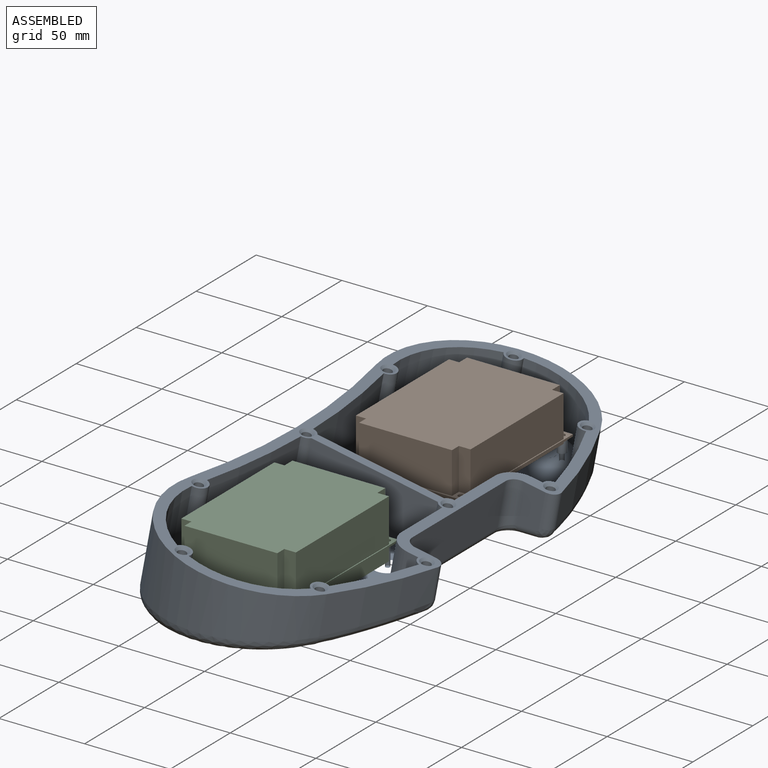
[diagram: assembled view]
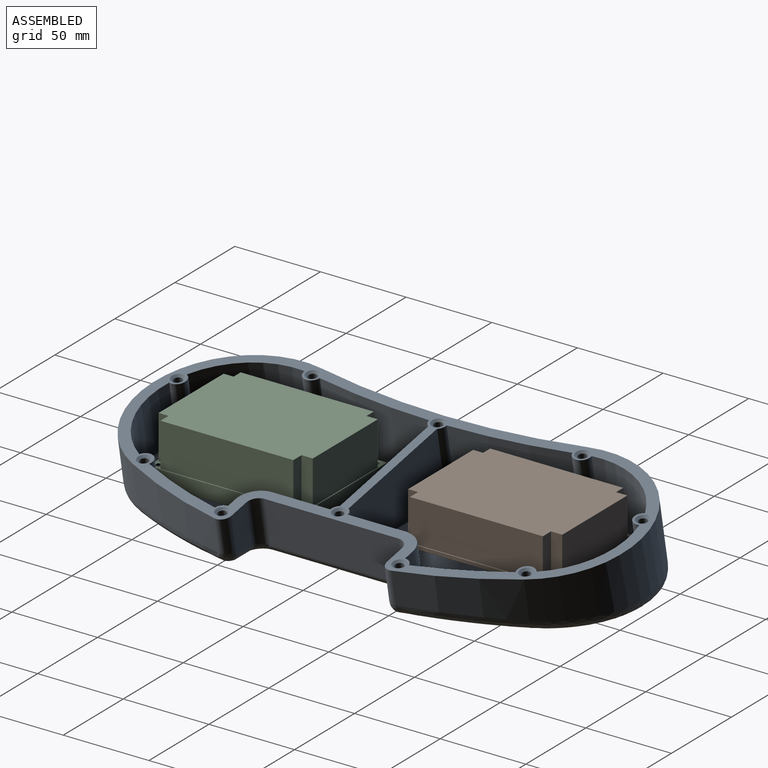
[diagram: assembled view, second angle]
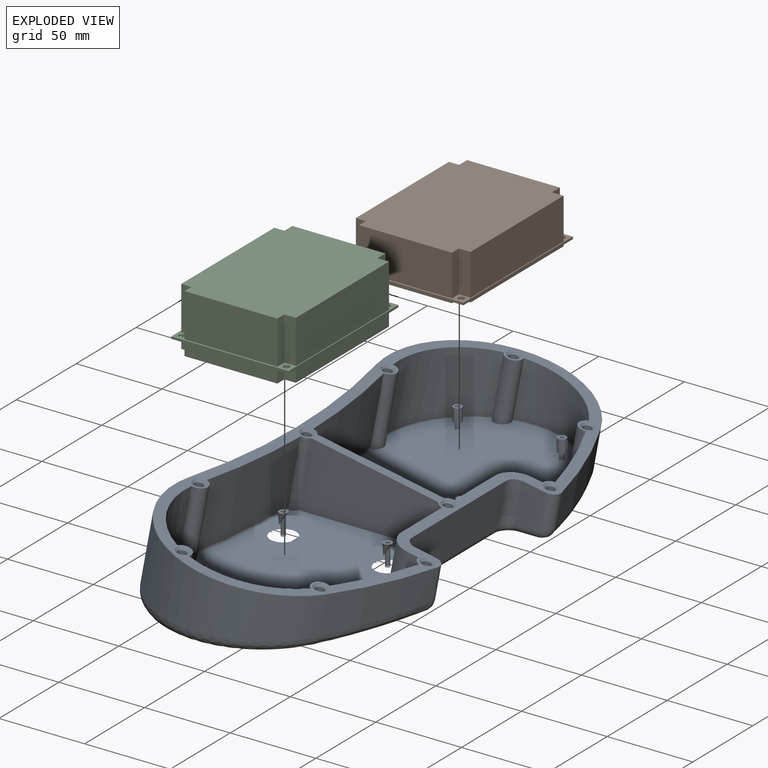
[diagram: exploded view]
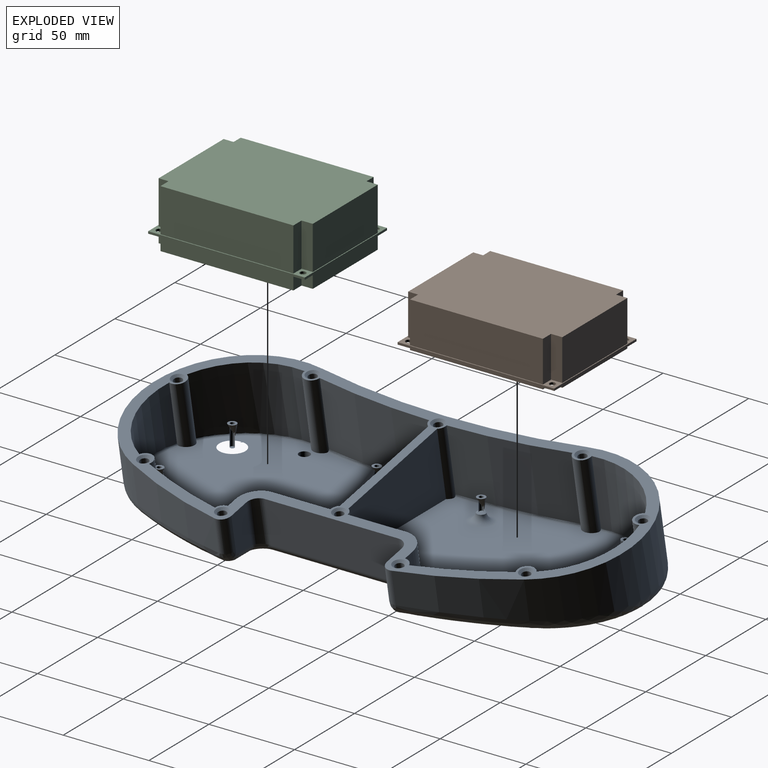
[diagram: exploded view, second angle]
ASSEMBLY  parts=3 mates=4
PART A: 146 faces, bbox 132.6x293.5x52.1 mm
  f0: plane 137.2x114.76mm, normal (-0.18,0,0.98), area 11283.3mm2, adj f2,f15,f28,f30,f44,f77,f100,f101
  f1: cylinder r=50.8mm len=57.05mm, axis (0,0,1), area 1942.7mm2, adj f11,f28,f101,f111
  f2: bspline ~56.74x34.08mm, area 132mm2, adj f0,f24,f105,f111
  f3: plane 137.2x114.76mm, normal (-0.18,0,0.98), area 11283.2mm2, adj f5,f6,f27,f29,f43,f78,f102,f103
  f4: cylinder r=50.8mm len=51.29mm, axis (0,0,1), area 2451.4mm2, adj f11,f29,f104,f110
  f5: bspline ~60.43x27.92mm, area 121.2mm2, adj f3,f25,f103,f110
  f6: bspline ~69.43x8.5mm, area 154.8mm2, adj f3,f26,f104,f109
  f7: plane 33.93x24.63mm, normal (-1,0,0), area 835.7mm2, adj f11,f41,f107,f122
  f8: cylinder r=393.7mm len=68.68mm, axis (0,0,1), area 2805.1mm2, adj f11,f30,f105,f108
  f9: cylinder r=250.83mm len=50.23mm, axis (0,0,1), area 1167.9mm2, adj f11,f15,f100,f101
  f10: cylinder r=257.18mm len=62.7mm, axis (0,0,1), area 1462.8mm2, adj f11,f16,f20,f79
  f11: plane 292.1x130.02mm, normal (0,0,1), area 4977.9mm2, adj f1,f4,f7,f8,f9,f10,f14,f16
  f12: plane 277.23x114.31mm, normal (0.18,0,-0.98), area 24885.5mm2, adj f13,f20,f21,f22,f23,f77,f78,f82
  f13: bspline ~90.1x38.56mm, area 686.6mm2, adj f12,f17,f22,f87,f89,f112,f119
  f14: cylinder r=250.83mm len=50.23mm, axis (0,0,1), area 1167.9mm2, adj f11,f27,f102,f103
  f15: bspline ~50.75x18.45mm, area 94.6mm2, adj f0,f9,f100,f101
  f16: cylinder r=57.15mm len=108.35mm, axis (0,0,1), area 5386mm2, adj f10,f11,f19,f21
  f17: cylinder r=257.18mm len=62.7mm, axis (0,0,1), area 1462.8mm2, adj f11,f13,f18,f85
  f18: cylinder r=57.15mm len=108.35mm, axis (0,0,1), area 5386mm2, adj f11,f17,f19,f22
  f19: cylinder r=387.35mm len=154.94mm, axis (0,0,1), area 6462.2mm2, adj f11,f16,f18,f23
  f20: bspline ~90.1x38.56mm, area 686.6mm2, adj f10,f12,f21,f80,f81,f114,f120
  f21: bspline ~111.04x74.9mm, area 1905.8mm2, adj f12,f16,f20,f23,f115,f120,f121
  f22: bspline ~111.04x74.9mm, area 1906.1mm2, adj f12,f13,f18,f23,f117,f118,f119
  f23: bspline ~157.99x16.85mm, area 2061mm2, adj f12,f19,f21,f22,f115,f116,f117
  f24: cylinder r=50.8mm len=50.2mm, axis (0,0,1), area 2367.4mm2, adj f2,f11,f105,f111
  f25: cylinder r=50.8mm len=54.65mm, axis (0,0,1), area 1855.4mm2, adj f5,f11,f103,f110
  f26: cylinder r=393.7mm len=68.68mm, axis (0,0,1), area 2805.1mm2, adj f6,f11,f104,f109
  f27: bspline ~50.75x18.45mm, area 94.6mm2, adj f3,f14,f102,f103
  f28: bspline ~66.63x27.92mm, area 126.3mm2, adj f0,f1,f101,f111
  f29: bspline ~56.74x34.08mm, area 137.2mm2, adj f3,f4,f104,f110
  f30: bspline ~69.43x8.5mm, area 154.8mm2, adj f0,f8,f105,f108
  f31: cylinder r=6.35mm len=26.74mm, axis (0,0,1), area 256mm2, adj f11,f32,f34,f86
  f32: plane 78.02x26.74mm, normal (1,0,0), area 2086mm2, adj f11,f31,f33,f84
  f33: cylinder r=6.35mm len=26.74mm, axis (0,0,1), area 256mm2, adj f11,f32,f35,f83
  f34: plane 24.59x12.7mm, normal (0,-1,0), area 296.6mm2, adj f11,f31,f36,f88,f89
  f35: plane 24.59x12.7mm, normal (0,1,0), area 296.6mm2, adj f11,f33,f37,f81,f82
  f36: plane 22.27x1.42mm, normal (0.18,-0.98,0), area 26.2mm2, adj f11,f34,f85,f87,f89
  f37: plane 22.27x1.42mm, normal (0.18,0.98,0), area 26.2mm2, adj f11,f35,f79,f80,f81
  f38: plane 22x6.37mm, normal (0,-1,0), area 136.3mm2, adj f11,f39,f100,f127
  f39: cylinder r=12.7mm len=24.63mm, axis (0,0,1), area 465.2mm2, adj f11,f38,f40,f126
  f40: plane 33.93x24.63mm, normal (-1,0,0), area 835.7mm2, adj f11,f39,f106,f125
  f41: cylinder r=12.7mm len=24.63mm, axis (0,0,1), area 465.2mm2, adj f7,f11,f42,f123
  f42: plane 22x6.37mm, normal (0,1,0), area 136.3mm2, adj f11,f41,f102,f124
  f43: plane 75.13x40.63mm, normal (0,1,0), area 2522.4mm2, adj f3,f11,f107,f109
  f44: plane 75.13x40.63mm, normal (0,-1,0), area 2522.4mm2, adj f0,f11,f106,f108
  f45: cylinder r=1.27mm len=12.95mm, axis (0.18,0,-0.98), area 101.3mm2, adj f47,f48
  f46: cylinder r=2.54mm len=8.43mm, axis (0.18,0,-0.98), area 121.6mm2, adj f47,f131
  f47: plane 5.08x4.99mm, normal (-0.18,0,0.98), area 15.2mm2, adj f45,f46
  f48: plane 2.54x2.5mm, normal (-0.18,0,0.98), area 5.1mm2, adj f45
  f49: cylinder r=1.27mm len=12.95mm, axis (0.18,0,-0.98), area 101.3mm2, adj f51,f52
  f50: cylinder r=2.54mm len=8.43mm, axis (0.18,0,-0.98), area 121.6mm2, adj f51,f130
  f51: plane 5.08x4.99mm, normal (-0.18,0,0.98), area 15.2mm2, adj f49,f50
  f52: plane 2.54x2.5mm, normal (-0.18,0,0.98), area 5.1mm2, adj f49
  f53: cylinder r=1.27mm len=12.95mm, axis (0.18,0,-0.98), area 101.3mm2, adj f55,f56
  f54: cylinder r=2.54mm len=8.43mm, axis (0.18,0,-0.98), area 121.6mm2, adj f55,f129
  f55: plane 5.08x4.99mm, normal (-0.18,0,0.98), area 15.2mm2, adj f53,f54
  f56: plane 2.54x2.5mm, normal (-0.18,0,0.98), area 5.1mm2, adj f53
  f57: cylinder r=1.27mm len=12.95mm, axis (0.18,0,-0.98), area 101.3mm2, adj f59,f60
  f58: cylinder r=2.54mm len=8.43mm, axis (0.18,0,-0.98), area 121.6mm2, adj f59,f128
  f59: plane 5.08x4.99mm, normal (-0.18,0,0.98), area 15.2mm2, adj f57,f58
  f60: plane 2.54x2.5mm, normal (-0.18,0,0.98), area 5.1mm2, adj f57
  f61: cylinder r=2.54mm len=8.43mm, axis (0.18,0,-0.98), area 121.6mm2, adj f63,f135
  f62: cylinder r=1.27mm len=12.95mm, axis (0.18,0,-0.98), area 101.3mm2, adj f63,f64
  f63: plane 5.08x4.99mm, normal (-0.18,0,0.98), area 15.2mm2, adj f61,f62
  f64: plane 2.54x2.5mm, normal (-0.18,0,0.98), area 5.1mm2, adj f62
  f65: cylinder r=2.54mm len=8.43mm, axis (0.18,0,-0.98), area 121.6mm2, adj f67,f134
  f66: cylinder r=1.27mm len=12.95mm, axis (0.18,0,-0.98), area 101.3mm2, adj f67,f68
  f67: plane 5.08x4.99mm, normal (-0.18,0,0.98), area 15.2mm2, adj f65,f66
  f68: plane 2.54x2.5mm, normal (-0.18,0,0.98), area 5.1mm2, adj f66
  f69: cylinder r=2.54mm len=8.43mm, axis (0.18,0,-0.98), area 121.6mm2, adj f71,f133
  f70: cylinder r=1.27mm len=12.95mm, axis (0.18,0,-0.98), area 101.3mm2, adj f71,f72
  f71: plane 5.08x4.99mm, normal (-0.18,0,0.98), area 15.2mm2, adj f69,f70
  f72: plane 2.54x2.5mm, normal (-0.18,0,0.98), area 5.1mm2, adj f70
  f73: cylinder r=2.54mm len=8.43mm, axis (0.18,0,-0.98), area 121.6mm2, adj f75,f132
  f74: cylinder r=1.27mm len=12.95mm, axis (0.18,0,-0.98), area 101.3mm2, adj f75,f76
  f75: plane 5.08x4.99mm, normal (-0.18,0,0.98), area 15.2mm2, adj f73,f74
  f76: plane 2.54x2.5mm, normal (-0.18,0,0.98), area 5.1mm2, adj f74
  f77: cylinder r=3.17mm len=7.41mm, axis (-0.18,0,0.98), area 126.7mm2, adj f0,f12
  f78: cylinder r=3.17mm len=7.41mm, axis (-0.18,0,0.98), area 126.7mm2, adj f3,f12
  f79: cylinder r=5.08mm len=20.03mm, axis (0,0,1), area 161.9mm2, adj f10,f11,f37,f80
  f80: bspline ~7.55x6.28mm, area 39mm2, adj f20,f37,f79,f81
  f81: bspline ~7.99x6.75mm, area 30.3mm2, adj f20,f35,f37,f80,f82,f114
  f82: cylinder r=5.08mm len=11.82mm, axis (0.98,0,0.18), area 85.9mm2, adj f12,f35,f81,f83,f114
  f83: bspline ~11.43x11.43mm, area 98mm2, adj f12,f33,f82,f84
  f84: cylinder r=5.08mm len=78.02mm, axis (0,-1,0), area 548.5mm2, adj f12,f32,f83,f86,f113
  f85: cylinder r=5.08mm len=20.03mm, axis (0,0,1), area 161.9mm2, adj f11,f17,f36,f87
  f86: bspline ~11.43x11.43mm, area 98mm2, adj f12,f31,f84,f88
  f87: bspline ~7.55x6.28mm, area 39mm2, adj f13,f36,f85,f89
  f88: cylinder r=5.08mm len=11.82mm, axis (-0.98,0,-0.18), area 85.9mm2, adj f12,f34,f86,f89,f112
  f89: bspline ~7.99x6.75mm, area 30.3mm2, adj f13,f34,f36,f87,f88,f112
  f90: plane 0.8x0.75mm, normal (-0.98,0,-0.18), area 0.6mm2, adj f12,f91,f93,f94
  f91: plane 3.23x1.33mm, normal (0,1,0), area 2.4mm2, adj f12,f90,f92,f94
  f92: plane 0.8x0.75mm, normal (0.98,0,0.18), area 0.6mm2, adj f12,f91,f93,f94
  f93: cylinder r=1.57mm len=3.23mm, axis (0.18,0,-0.98), area 3.8mm2, adj f12,f90,f92,f94
  f94: plane 3.09x2.37mm, normal (0.18,0,-0.98), area 6.4mm2, adj f90,f91,f92,f93
  f95: plane 0.79x0.38mm, normal (0.66,-0.74,0.12), area 0.3mm2, adj f12,f96,f98,f99
  f96: cylinder r=1.57mm len=3.23mm, axis (0.18,0,-0.98), area 5.5mm2, adj f12,f95,f97,f99
  f97: plane 0.79x0.38mm, normal (-0.65,-0.75,-0.12), area 0.3mm2, adj f12,f96,f98,f99
  f98: cylinder r=1.24mm len=2.58mm, axis (0.18,0,-0.98), area 4.4mm2, adj f12,f95,f97,f99
  f99: plane 3.09x2.63mm, normal (0.18,0,-0.98), area 2.1mm2, adj f95,f96,f97,f98
  f100: cylinder r=5.08mm len=22.07mm, axis (0,0,1), area 148.5mm2, adj f0,f9,f11,f15,f38,f127
  f101: cylinder r=5.08mm len=25.68mm, axis (0,0,1), area 393.9mm2, adj f0,f1,f9,f11,f15,f28
  f102: cylinder r=5.08mm len=22.07mm, axis (0,0,1), area 148.5mm2, adj f3,f11,f14,f27,f42,f124
  f103: cylinder r=5.08mm len=25.68mm, axis (0,0,1), area 393.9mm2, adj f3,f5,f11,f14,f25,f27
  f104: cylinder r=5.08mm len=42.81mm, axis (0,0,1), area 669.4mm2, adj f3,f4,f6,f11,f26,f29
  f105: cylinder r=5.08mm len=42.81mm, axis (0,0,1), area 669.4mm2, adj f0,f2,f8,f11,f24,f30
  f106: cylinder r=5.08mm len=26.51mm, axis (0,0,1), area 138.4mm2, adj f0,f11,f40,f44,f125
  f107: cylinder r=5.08mm len=26.51mm, axis (0,0,1), area 138.4mm2, adj f3,f7,f11,f43,f122
  f108: cylinder r=5.08mm len=41.18mm, axis (0,0,1), area 218.1mm2, adj f0,f8,f11,f30,f44
  f109: cylinder r=5.08mm len=41.18mm, axis (0,0,1), area 218.1mm2, adj f3,f6,f11,f26,f43
  f110: cylinder r=5.08mm len=37.46mm, axis (0,0,1), area 563.8mm2, adj f3,f4,f5,f11,f25,f29
  f111: cylinder r=5.08mm len=37.86mm, axis (0,0,1), area 570.3mm2, adj f0,f1,f2,f11,f24,f28
  f112: cylinder r=2.54mm len=26.75mm, axis (0,0,1), area 417.9mm2, adj f12,f13,f88,f89,f138
  f113: cylinder r=2.54mm len=31.36mm, axis (0,0,1), area 492.8mm2, adj f12,f84,f142
  f114: cylinder r=2.54mm len=26.75mm, axis (0,0,1), area 417.9mm2, adj f12,f20,f81,f82,f137
  f115: cylinder r=2.54mm len=47.85mm, axis (0,0,1), area 757.1mm2, adj f21,f23,f145
  f116: cylinder r=2.54mm len=46.17mm, axis (0,0,1), area 736.9mm2, adj f23,f143
  f117: cylinder r=2.54mm len=47.85mm, axis (0,0,1), area 757.1mm2, adj f22,f23,f140
  f118: cylinder r=2.54mm len=42.2mm, axis (0,0,1), area 661.7mm2, adj f12,f22,f141
  f119: cylinder r=2.54mm len=30.71mm, axis (0,0,1), area 481mm2, adj f12,f13,f22,f139
  f120: cylinder r=2.54mm len=30.71mm, axis (0,0,1), area 481mm2, adj f12,f20,f21,f136
  f121: cylinder r=2.54mm len=42.61mm, axis (0,0,1), area 668.4mm2, adj f12,f21,f144
  f122: cylinder r=1.27mm len=34.04mm, axis (0,-1,0), area 59.8mm2, adj f3,f7,f107,f123
  f123: bspline ~13.97x13.97mm, area 38.6mm2, adj f3,f41,f122,f124
  f124: cylinder r=1.27mm len=6.6mm, axis (-0.98,0,-0.18), area 12.9mm2, adj f3,f42,f102,f123
  f125: cylinder r=1.27mm len=34.04mm, axis (0,-1,0), area 59.8mm2, adj f0,f40,f106,f126
  f126: bspline ~13.97x13.97mm, area 38.6mm2, adj f0,f39,f125,f127
  f127: cylinder r=1.27mm len=6.6mm, axis (0.98,0,0.18), area 12.9mm2, adj f0,f38,f100,f126
  f128: torus R=7.62mm, axis (0.18,0,-0.98), area 219.9mm2, adj f3,f58
  f129: torus R=7.62mm, axis (0.18,0,-0.98), area 219.9mm2, adj f3,f54
  f130: torus R=7.62mm, axis (0.18,0,-0.98), area 219.9mm2, adj f3,f50
  f131: torus R=7.62mm, axis (0.18,0,-0.98), area 219.9mm2, adj f3,f46
  f132: torus R=7.62mm, axis (0.18,0,-0.98), area 219.9mm2, adj f0,f73
  f133: torus R=7.62mm, axis (0.18,0,-0.98), area 219.9mm2, adj f0,f69
  f134: torus R=7.62mm, axis (0.18,0,-0.98), area 219.9mm2, adj f0,f65
  f135: torus R=7.62mm, axis (0.18,0,-0.98), area 219.9mm2, adj f0,f61
  f136: cone r=2.54mm half-angle=45deg, axis (0,0,1), area 35.8mm2, adj f11,f120
  f137: cone r=2.54mm half-angle=45deg, axis (0,0,1), area 35.8mm2, adj f11,f114
  f138: cone r=2.54mm half-angle=45deg, axis (0,0,1), area 35.8mm2, adj f11,f112
  f139: cone r=2.54mm half-angle=45deg, axis (0,0,1), area 35.8mm2, adj f11,f119
  f140: cone r=2.54mm half-angle=45deg, axis (0,0,1), area 35.8mm2, adj f11,f117
  f141: cone r=2.54mm half-angle=45deg, axis (0,0,1), area 35.8mm2, adj f11,f118
  f142: cone r=2.54mm half-angle=45deg, axis (0,0,1), area 35.8mm2, adj f11,f113
  f143: cone r=2.54mm half-angle=45deg, axis (0,0,1), area 35.8mm2, adj f11,f116
  f144: cone r=2.54mm half-angle=45deg, axis (0,0,1), area 35.8mm2, adj f11,f121
  f145: cone r=2.54mm half-angle=45deg, axis (0,0,1), area 35.8mm2, adj f11,f115
PART B: 36 faces, bbox 91.4x68.6x26.7 mm
  f0: plane 91.44x68.58mm, normal (0,0,1), area 367.2mm2, adj f2,f3,f4,f5,f6,f7,f8,f9
  f1: plane 91.44x68.58mm, normal (0,0,-1), area 367.2mm2, adj f2,f3,f4,f5,f6,f7,f8,f9
  f2: plane 68.58x1.27mm, normal (-1,0,0), area 87.1mm2, adj f0,f1,f3,f5
  f3: plane 91.44x1.27mm, normal (0,-1,0), area 116.1mm2, adj f0,f1,f2,f4
  f4: plane 68.58x1.27mm, normal (1,0,0), area 87.1mm2, adj f0,f1,f3,f5
  f5: plane 91.44x1.27mm, normal (0,1,0), area 116.1mm2, adj f0,f1,f2,f4
  f6: cylinder r=1.78mm len=3.56mm, axis (0,0,-1), area 14.2mm2, adj f0,f1
  f7: cylinder r=1.78mm len=3.56mm, axis (0,0,-1), area 14.2mm2, adj f0,f1
  f8: cylinder r=1.78mm len=3.56mm, axis (0,0,-1), area 14.2mm2, adj f0,f1
  f9: cylinder r=1.78mm len=3.56mm, axis (0,0,-1), area 14.2mm2, adj f0,f1
  f10: plane 89.98x66.92mm, normal (0,0,-1), area 5864mm2, adj f11,f12,f13,f14,f15,f16,f17,f18
  f11: plane 6.57x1.27mm, normal (0,1,0), area 8.3mm2, adj f1,f10,f12,f22
  f12: plane 54.21x1.27mm, normal (-1,0,0), area 68.8mm2, adj f1,f10,f11,f13
  f13: plane 6.57x1.27mm, normal (0,-1,0), area 8.3mm2, adj f1,f10,f12,f14
  f14: plane 5.93x1.27mm, normal (-1,0,0), area 7.5mm2, adj f1,f10,f13,f15
  f15: plane 77.61x1.27mm, normal (0,-1,0), area 98.6mm2, adj f1,f10,f14,f16
  f16: plane 5.93x1.27mm, normal (1,0,0), area 7.5mm2, adj f1,f10,f15,f17
  f17: plane 5.8x1.27mm, normal (0,-1,0), area 7.4mm2, adj f1,f10,f16,f18
  f18: plane 54.21x1.27mm, normal (1,0,0), area 68.8mm2, adj f1,f10,f17,f19
  f19: plane 5.8x1.27mm, normal (0,1,0), area 7.4mm2, adj f1,f10,f18,f20
  f20: plane 6.78x1.27mm, normal (1,0,0), area 8.6mm2, adj f1,f10,f19,f21
  f21: plane 77.61x1.27mm, normal (0,1,0), area 98.6mm2, adj f1,f10,f20,f22
  f22: plane 6.78x1.27mm, normal (-1,0,0), area 8.6mm2, adj f1,f10,f11,f21
  f23: plane 24.13x6.78mm, normal (-1,0,0), area 163.6mm2, adj f0,f24,f34,f35
  f24: plane 77.61x24.13mm, normal (0,1,0), area 1872.6mm2, adj f0,f23,f25,f35
  f25: plane 24.13x6.78mm, normal (1,0,0), area 163.6mm2, adj f0,f24,f26,f35
  f26: plane 24.13x5.8mm, normal (0,1,0), area 139.9mm2, adj f0,f25,f27,f35
  f27: plane 54.21x24.13mm, normal (1,0,0), area 1308.1mm2, adj f0,f26,f28,f35
  f28: plane 24.13x5.8mm, normal (0,-1,0), area 139.9mm2, adj f0,f27,f29,f35
  f29: plane 24.13x5.93mm, normal (1,0,0), area 143.2mm2, adj f0,f28,f30,f35
  f30: plane 77.61x24.13mm, normal (0,-1,0), area 1872.6mm2, adj f0,f29,f31,f35
  f31: plane 24.13x5.93mm, normal (-1,0,0), area 143.2mm2, adj f0,f30,f32,f35
  f32: plane 24.13x6.57mm, normal (0,-1,0), area 158.6mm2, adj f0,f31,f33,f35
  f33: plane 54.21x24.13mm, normal (-1,0,0), area 1308.1mm2, adj f0,f32,f34,f35
  f34: plane 24.13x6.57mm, normal (0,1,0), area 158.6mm2, adj f0,f23,f33,f35
  f35: plane 89.98x66.92mm, normal (0,0,1), area 5864mm2, adj f23,f24,f25,f26,f27,f28,f29,f30
PART C: 36 faces, bbox 91.4x68.6x34.3 mm
  f0: plane 91.44x68.58mm, normal (0,0,1), area 367.2mm2, adj f2,f3,f4,f5,f6,f7,f8,f9
  f1: plane 91.44x68.58mm, normal (0,0,-1), area 367.2mm2, adj f2,f3,f4,f5,f6,f7,f8,f9
  f2: plane 68.58x1.27mm, normal (-1,0,0), area 87.1mm2, adj f0,f1,f3,f5
  f3: plane 91.44x1.27mm, normal (0,-1,0), area 116.1mm2, adj f0,f1,f2,f4
  f4: plane 68.58x1.27mm, normal (1,0,0), area 87.1mm2, adj f0,f1,f3,f5
  f5: plane 91.44x1.27mm, normal (0,1,0), area 116.1mm2, adj f0,f1,f2,f4
  f6: cylinder r=1.78mm len=3.56mm, axis (0,0,-1), area 14.2mm2, adj f0,f1
  f7: cylinder r=1.78mm len=3.56mm, axis (0,0,-1), area 14.2mm2, adj f0,f1
  f8: cylinder r=1.78mm len=3.56mm, axis (0,0,-1), area 14.2mm2, adj f0,f1
  f9: cylinder r=1.78mm len=3.56mm, axis (0,0,-1), area 14.2mm2, adj f0,f1
  f10: plane 89.98x66.92mm, normal (0,0,-1), area 5864mm2, adj f11,f12,f13,f14,f15,f16,f17,f18
  f11: plane 7.62x6.57mm, normal (0,1,0), area 50.1mm2, adj f1,f10,f12,f22
  f12: plane 54.21x7.62mm, normal (-1,0,0), area 413.1mm2, adj f1,f10,f11,f13
  f13: plane 7.62x6.57mm, normal (0,-1,0), area 50.1mm2, adj f1,f10,f12,f14
  f14: plane 7.62x5.93mm, normal (-1,0,0), area 45.2mm2, adj f1,f10,f13,f15
  f15: plane 77.61x7.62mm, normal (0,-1,0), area 591.4mm2, adj f1,f10,f14,f16
  f16: plane 7.62x5.93mm, normal (1,0,0), area 45.2mm2, adj f1,f10,f15,f17
  f17: plane 7.62x5.8mm, normal (0,-1,0), area 44.2mm2, adj f1,f10,f16,f18
  f18: plane 54.21x7.62mm, normal (1,0,0), area 413.1mm2, adj f1,f10,f17,f19
  f19: plane 7.62x5.8mm, normal (0,1,0), area 44.2mm2, adj f1,f10,f18,f20
  f20: plane 7.62x6.78mm, normal (1,0,0), area 51.7mm2, adj f1,f10,f19,f21
  f21: plane 77.61x7.62mm, normal (0,1,0), area 591.4mm2, adj f1,f10,f20,f22
  f22: plane 7.62x6.78mm, normal (-1,0,0), area 51.7mm2, adj f1,f10,f11,f21
  f23: plane 25.4x6.78mm, normal (-1,0,0), area 172.2mm2, adj f0,f24,f34,f35
  f24: plane 77.61x25.4mm, normal (0,1,0), area 1971.2mm2, adj f0,f23,f25,f35
  f25: plane 25.4x6.78mm, normal (1,0,0), area 172.2mm2, adj f0,f24,f26,f35
  f26: plane 25.4x5.8mm, normal (0,1,0), area 147.3mm2, adj f0,f25,f27,f35
  f27: plane 54.21x25.4mm, normal (1,0,0), area 1376.9mm2, adj f0,f26,f28,f35
  f28: plane 25.4x5.8mm, normal (0,-1,0), area 147.3mm2, adj f0,f27,f29,f35
  f29: plane 25.4x5.93mm, normal (1,0,0), area 150.7mm2, adj f0,f28,f30,f35
  f30: plane 77.61x25.4mm, normal (0,-1,0), area 1971.2mm2, adj f0,f29,f31,f35
  f31: plane 25.4x5.93mm, normal (-1,0,0), area 150.7mm2, adj f0,f30,f32,f35
  f32: plane 25.4x6.57mm, normal (0,-1,0), area 167mm2, adj f0,f31,f33,f35
  f33: plane 54.21x25.4mm, normal (-1,0,0), area 1376.9mm2, adj f0,f32,f34,f35
  f34: plane 25.4x6.57mm, normal (0,1,0), area 167mm2, adj f0,f23,f33,f35
  f35: plane 89.98x66.92mm, normal (0,0,1), area 5864mm2, adj f23,f24,f25,f26,f27,f28,f29,f30
PLACE A rot(axis=(0,1,0),10.6deg) t=(190.6,87.74,152.14)mm
PLACE B rot(axis=(0,0,-1),90deg) t=(-43.43,222.87,169.47)mm
PLACE C rot(axis=(0,0,-1),90deg) t=(-43.39,77.25,169.47)mm
MATE planar A.f133 <-> C.f1  axis (0,0,1) through (-43.39,77.58,169.47)mm
MATE planar A.f53 <-> B.f1  axis (0,0,1) through (17.57,222.87,169.47)mm
MATE cylindrical C.f8 <-> A.f135  axis (0,0,-1) through (-43.39,-6.75,170.74)mm
MATE cylindrical A.f53 <-> B.f6  axis (0,0,1) through (17.57,222.87,169.47)mm
